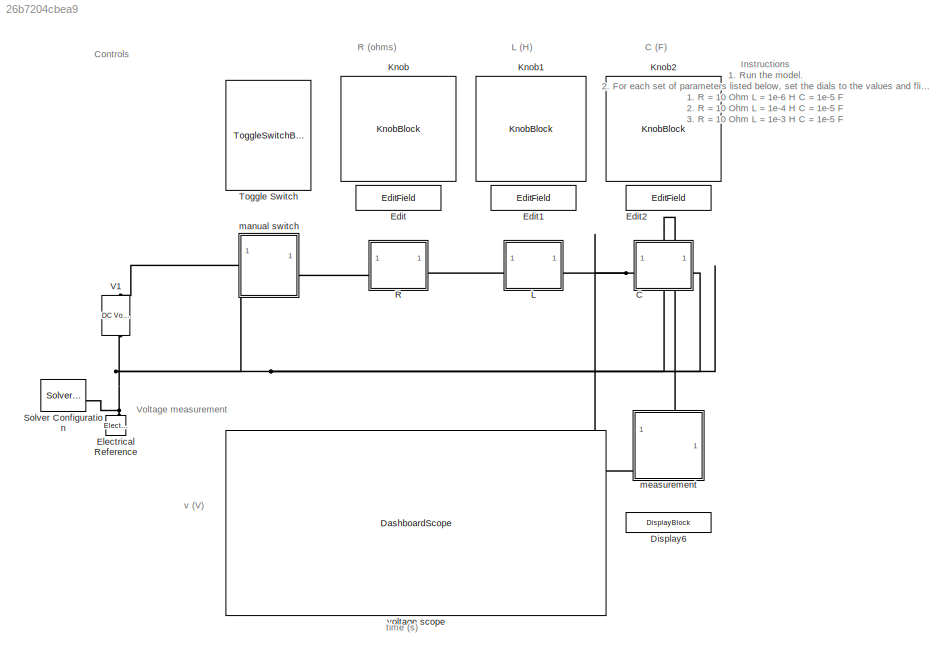
MODEL slx_26b7204cbea9
KIND model
CONFIG AbsTol = auto
CONFIG EnableMultiTasking = off
CONFIG FixedStep = auto
CONFIG MaxStep = 1e-5
CONFIG MinStep = auto
CONFIG RelTol = 1e-3
CONFIG SampleTimeConstraint = Unconstrained
CONFIG SolverName = VariableStepAuto
CONFIG StartTime = 0.0
CONFIG StopTime = inf
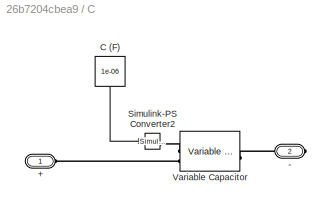
BLOCK [SubSystem] C
  NameLocation = top
BLOCK [PMIOPort] C/+
  Side = Left
BLOCK [PMIOPort] C/-
  Port = 2
  Side = Right
BLOCK [Constant] C/C (F)
  NameLocation = left
  Value = 1e-06
BLOCK [Reference] C/Simulink-PS Converter2  REF=nesl_utility/Simulink-PS
Converter
  SourceBlock = nesl_utility/Simulink-PS\nConverter
  SourceType = Simulink-PS\nConverter
BLOCK [Reference] C/Variable Capacitor  REF=ee_lib/Passive/Variable Capacitor
  SourceBlock = ee_lib/Passive/Variable Capacitor
  SourceType = Variable Capacitor
BLOCK [DisplayBlock] Display6
  Alignment = Right
  Format = Custom
  FormatString = %0.4f
  LabelPosition = Hide
  Transparency = 1
BLOCK [EditField] Edit
  Alignment = Center
  LabelPosition = Hide
  ShowInitialText = on
BLOCK [EditField] Edit1
  Alignment = Center
  LabelPosition = Hide
  ShowInitialText = on
BLOCK [EditField] Edit2
  Alignment = Center
  LabelPosition = Hide
  ShowInitialText = on
BLOCK [Reference] Electrical Reference  REF=fl_lib/Electrical/Electrical Elements/Electrical Reference
  NameLocation = right
  SourceBlock = fl_lib/Electrical/Electrical Elements/Electrical Reference
  SourceType = Electrical Reference
BLOCK [KnobBlock] Knob
  LabelPosition = Hide
  ScaleMax = 1e6
  ScaleMin = 1
  ScaleType = Log
BLOCK [KnobBlock] Knob1
  LabelPosition = Hide
  ScaleMax = 1
  ScaleMin = 1e-6
  ScaleType = Log
BLOCK [KnobBlock] Knob2
  LabelPosition = Hide
  ScaleMax = 1
  ScaleMin = 1e-6
  ScaleType = Log
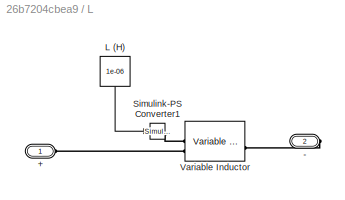
BLOCK [SubSystem] L
  NameLocation = top
BLOCK [PMIOPort] L/+
  Side = Left
BLOCK [PMIOPort] L/-
  Port = 2
  Side = Right
BLOCK [Constant] L/L (H)
  NameLocation = left
  Value = 1e-06
BLOCK [Reference] L/Simulink-PS Converter1  REF=nesl_utility/Simulink-PS
Converter
  SourceBlock = nesl_utility/Simulink-PS\nConverter
  SourceType = Simulink-PS\nConverter
BLOCK [Reference] L/Variable Inductor  REF=ee_lib/Passive/Variable Inductor
  SourceBlock = ee_lib/Passive/Variable Inductor
  SourceType = Variable Inductor
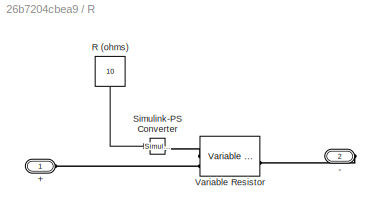
BLOCK [SubSystem] R
  NameLocation = top
BLOCK [Constant] R/ R (ohms)
  NameLocation = top
  Value = 10
BLOCK [PMIOPort] R/+
  Side = Left
BLOCK [PMIOPort] R/-
  Port = 2
  Side = Right
BLOCK [Reference] R/Simulink-PS Converter  REF=nesl_utility/Simulink-PS
Converter
  SourceBlock = nesl_utility/Simulink-PS\nConverter
  SourceType = Simulink-PS\nConverter
BLOCK [Reference] R/Variable Resistor  REF=fl_lib/Electrical/Electrical Elements/Variable Resistor
  SourceBlock = fl_lib/Electrical/Electrical Elements/Variable Resistor
  SourceType = Variable Resistor
BLOCK [Reference] Solver Configuration  REF=nesl_utility/Solver
Configuration
  SourceBlock = nesl_utility/Solver\nConfiguration
  SourceType = Solver\nConfiguration
BLOCK [ToggleSwitchBlock] Toggle Switch
  LabelPosition = Hide
  NameLocation = left
BLOCK [Reference] V1  REF=fl_lib/Electrical/Electrical Sources/DC Voltage Source
  AttributesFormatString = %<v0> %<v0_unit>
  NameLocation = right
  SourceBlock = fl_lib/Electrical/Electrical Sources/DC Voltage Source
  SourceType = DC Voltage Source
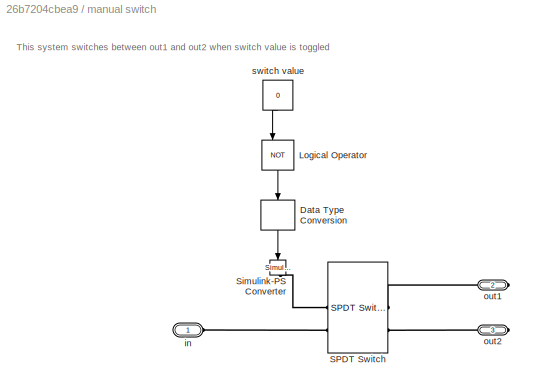
BLOCK [SubSystem] manual switch
  NameLocation = top
  PortSchema = {"entries":[{"content":{"sides":[{"content":{"connectorIds":["LConn1"]},"type":"ConnectorPlacement.EquallySpacedRectSide","uuid":"0e8d165f-9423-448d-a092-8a5aaec0f3f9"},{"content":{"connectorIds":["RConn1"],"side":"RIGHT"},"type":"ConnectorPlacement.EquallySpacedRectSide","uuid":"3a6701ab-7127-4025-a8cd-0b0ce6beee28"},{"content":{"connectorIds":[],"side":"TOP"},"type":"ConnectorPlacement.EquallySp...<+397ch>
BLOCK [DataTypeConversion] manual switch/Data Type Conversion
  NameLocation = left
  OutDataTypeStr = double
  RndMeth = Floor
  SaturateOnIntegerOverflow = off
BLOCK [Logic] manual switch/Logical Operator
  AllPortsSameDT = off
  NameLocation = left
  Operator = NOT
  OutDataTypeStr = boolean
BLOCK [Reference] manual switch/SPDT Switch  REF=ee_lib/Switches & Breakers/SPDT Switch
  SourceBlock = ee_lib/Switches & Breakers/SPDT Switch
  SourceType = SPDT Switch
BLOCK [Reference] manual switch/Simulink-PS Converter  REF=nesl_utility/Simulink-PS
Converter
  NameLocation = left
  SourceBlock = nesl_utility/Simulink-PS\nConverter
  SourceType = Simulink-PS\nConverter
BLOCK [PMIOPort] manual switch/in
  NameLocation = top
  Side = Left
BLOCK [PMIOPort] manual switch/out1
  Port = 2
  Side = Right
BLOCK [PMIOPort] manual switch/out2
  Port = 3
  Side = Right
BLOCK [Constant] manual switch/switch value
  NameLocation = left
  Value = 0
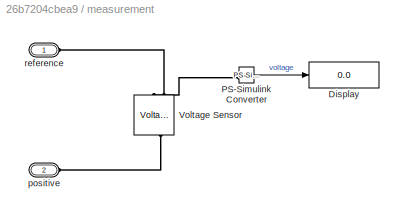
BLOCK [SubSystem] measurement
  PortSchema = {"entries":[{"content":{"sides":[{"content":{"connectorIds":[]},"type":"ConnectorPlacement.EquallySpacedRectSide","uuid":"e6ae0c61-2eb5-460e-b2a2-38a9147b4757"},{"content":{"connectorIds":[],"side":"RIGHT"},"type":"ConnectorPlacement.EquallySpacedRectSide","uuid":"ce3a3055-ccd0-4b2b-b818-955585f278b2"},{"content":{"connectorIds":["LConn1","LConn2"],"side":"TOP"},"type":"ConnectorPlacement.EquallyS...<+390ch>
BLOCK [Display] measurement/Display
  Decimation = 1
BLOCK [Reference] measurement/PS-Simulink Converter  REF=nesl_utility/PS-Simulink
Converter
  SourceBlock = nesl_utility/PS-Simulink\nConverter
  SourceType = PS-Simulink\nConverter
BLOCK [Reference] measurement/Voltage Sensor  REF=fl_lib/Electrical/Electrical Sensors/Voltage Sensor
  NameLocation = left
  SourceBlock = fl_lib/Electrical/Electrical Sensors/Voltage Sensor
  SourceType = Voltage Sensor
BLOCK [PMIOPort] measurement/positive
  Port = 2
  Side = Left
BLOCK [PMIOPort] measurement/reference
  Side = Left
BLOCK [DashboardScope] voltage scope
  NameLocation = top
  ScaleAtStop = off
  ShowInitialText = off
  TimeSpan = 0.01
  Ymax = 20
  Ymin = -10
ANNOTATION (root): Instructions 1. Run the model. 2. For each set of parameters listed below, set the dials to the values and flip the switch a few times to view the transient responses. 1. R = 10 Ohm L = 1e-6 H C = 1e-5 F 2. R = 10 Ohm L = 1e-4 H C = 1e-5 F 3. R = 10 Ohm L = 1e-3 H C = 1e-5 F 4. R = 10 Ohm L = 1e-2 H C = 1e-5 F 5. R = 50 Ohm L = 1e-2 H C = 1e-5 F 6. R = 100 Ohm L = 1e-2 H C = 1e-5 F 7. R = 10 Ohm L...<+145ch>
ANNOTATION (root): v (V)
ANNOTATION (root): time (s)
ANNOTATION (root): C (F)
ANNOTATION (root): Controls
ANNOTATION (root): L (H)
ANNOTATION (root): R (ohms)
ANNOTATION (root): Voltage measurement
ANNOTATION manual switch: This system switches between out1 and out2 when switch value is toggled
LINE C/C (F):1 -> C/Simulink-PS Converter2:1
LINE L/L (H):1 -> L/Simulink-PS Converter1:1
LINE R/ R (ohms):1 -> R/Simulink-PS Converter:1
LINE manual switch/Data Type Conversion:1 -> manual switch/Simulink-PS Converter:1
LINE manual switch/Logical Operator:1 -> manual switch/Data Type Conversion:1
LINE manual switch/switch value:1 -> manual switch/Logical Operator:1
LINE measurement/PS-Simulink Converter:1 -> measurement/Display:1
PLINE C/+:RConn1 -- C/Variable Capacitor:LConn2
PLINE C/-:RConn1 -- C/Variable Capacitor:RConn1
PLINE C/Simulink-PS Converter2:RConn1 -- C/Variable Capacitor:LConn1
PNET net1: C:LConn1 -- L:RConn1 -- measurement:LConn2
PNET net2: C:RConn1 -- Electrical Reference:LConn1 -- Solver Configuration:RConn1 -- V1:RConn1 -- manual switch:RConn2 -- measurement:LConn1
PLINE L/+:RConn1 -- L/Variable Inductor:LConn2
PLINE L/-:RConn1 -- L/Variable Inductor:RConn1
PLINE L/Simulink-PS Converter1:RConn1 -- L/Variable Inductor:LConn1
PLINE L:LConn1 -- R:RConn1
PLINE R/+:RConn1 -- R/Variable Resistor:LConn2
PLINE R/-:RConn1 -- R/Variable Resistor:RConn1
PLINE R/Simulink-PS Converter:RConn1 -- R/Variable Resistor:LConn1
PLINE R:LConn1 -- manual switch:LConn1
PLINE V1:LConn1 -- manual switch:RConn1
PLINE manual switch/SPDT Switch:LConn1 -- manual switch/Simulink-PS Converter:RConn1
PLINE manual switch/SPDT Switch:LConn2 -- manual switch/in:RConn1
PLINE manual switch/SPDT Switch:RConn1 -- manual switch/out1:RConn1
PLINE manual switch/SPDT Switch:RConn2 -- manual switch/out2:RConn1
PLINE measurement/PS-Simulink Converter:LConn1 -- measurement/Voltage Sensor:RConn1
PLINE measurement/Voltage Sensor:LConn1 -- measurement/positive:RConn1
PLINE measurement/Voltage Sensor:RConn2 -- measurement/reference:RConn1
note: PNET lines group multi-terminal physical nets as a canonical sorted terminal list (undirected conserving connections); 2-terminal nets keep the pairwise PLINE form
